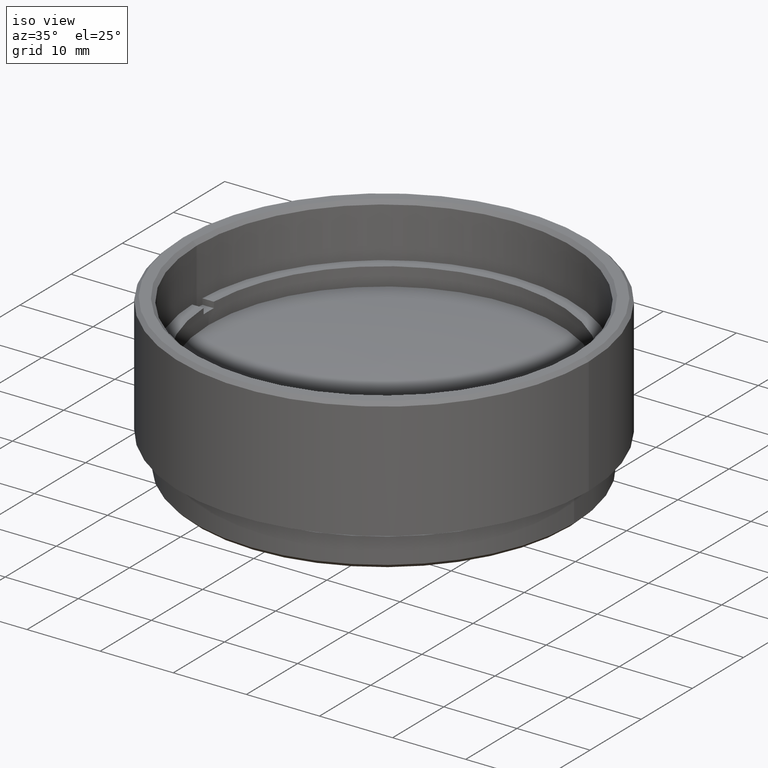
[diagram: clean part render]
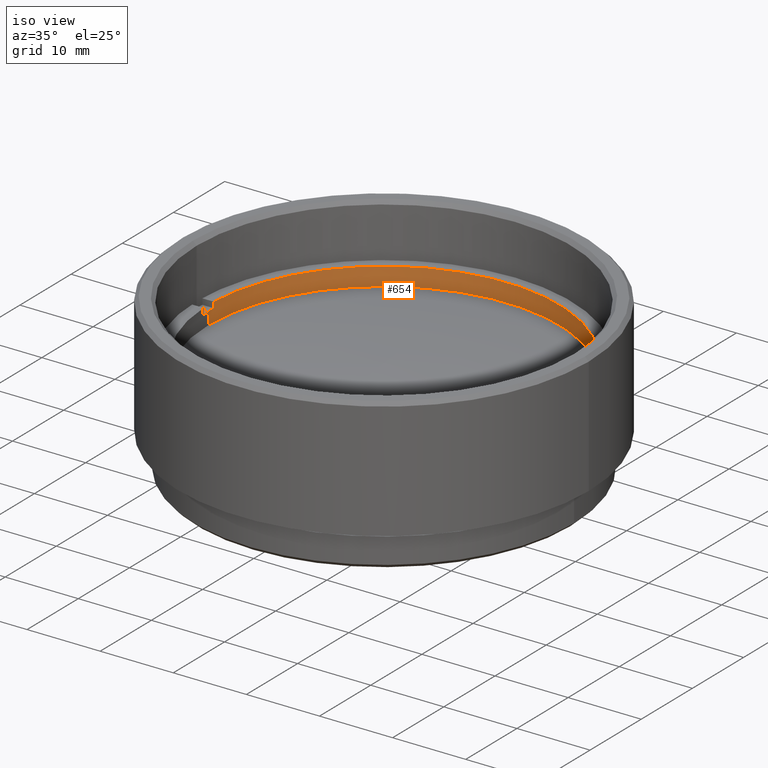
[diagram: same view with one face highlighted and labeled with its STEP entity id]
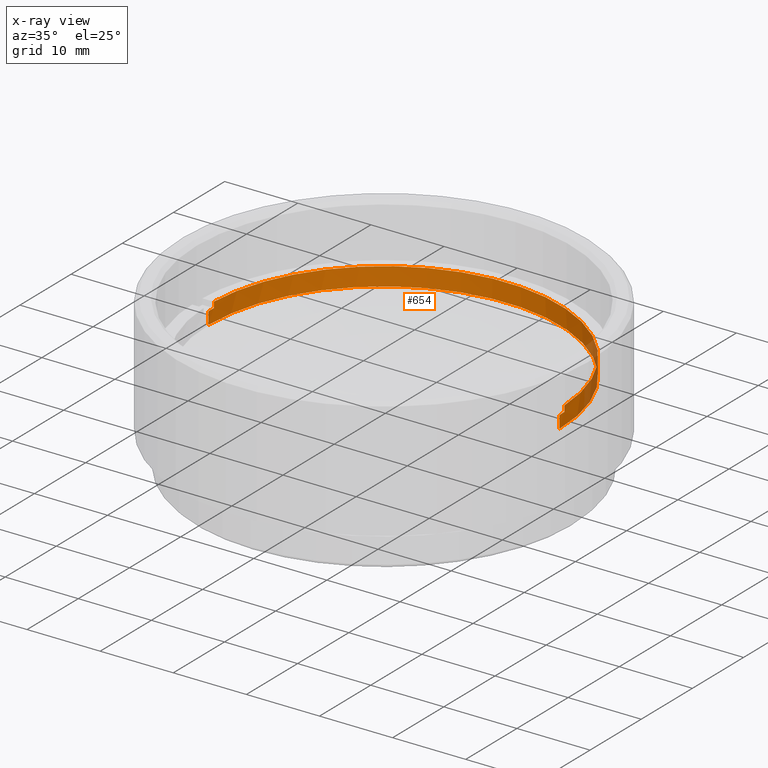
[diagram: x-ray of the same camera — body ghosted, the highlighted face saturated]
A machine part, iso view. The second image highlights one B-rep face of the part: STEP entity #654.
The next image is the same camera in x-ray: the body ghosted, the highlighted face saturated — about 5% of this face is hidden behind the body in this view.
In plain terms, the highlighted cylindrical surface (partial cylindrical patch) has radius 24 mm, axis along (-0, -0, -1).
Its self-contained STEP definition (entity closure, byte-faithful):
#6 = DIRECTION ( 'NONE',  ( -0.000000000000000000, -0.000000000000000000, -1.000000000000000000 ) ) ;
#20 = ORIENTED_EDGE ( 'NONE', *, *, #927, .T. ) ;
#24 = DIRECTION ( 'NONE',  ( 0.000000000000000000, 0.000000000000000000, 1.000000000000000000 ) ) ;
#72 = VECTOR ( 'NONE', #6, 1000.000000000000000 ) ;
#118 = VECTOR ( 'NONE', #871, 1000.000000000000000 ) ;
#127 = CARTESIAN_POINT ( 'NONE',  ( 0.000000000000000000, 0.000000000000000000, 2.500000000000000000 ) ) ;
#160 = CARTESIAN_POINT ( 'NONE',  ( 23.97915761656360445, 1.000000000000000000, 2.500000000000000000 ) ) ;
#178 = DIRECTION ( 'NONE',  ( 1.000000000000000000, 0.000000000000000000, 0.000000000000000000 ) ) ;
#179 = CARTESIAN_POINT ( 'NONE',  ( 0.000000000000000000, 0.000000000000000000, 1.700000000000000178 ) ) ;
#180 = CIRCLE ( 'NONE', #852, 24.00000000000000355 ) ;
#223 = CARTESIAN_POINT ( 'NONE',  ( -24.00000000000000355, 0.000000000000000000, 0.000000000000000000 ) ) ;
#229 = CIRCLE ( 'NONE', #257, 24.00000000000000355 ) ;
#252 = CARTESIAN_POINT ( 'NONE',  ( 0.000000000000000000, 0.000000000000000000, 2.500000000000000000 ) ) ;
#257 = AXIS2_PLACEMENT_3D ( 'NONE', #179, #595, #1692 ) ;
#259 = EDGE_CURVE ( 'NONE', #686, #596, #180, .T. ) ;
#277 = DIRECTION ( 'NONE',  ( -0.000000000000000000, 0.000000000000000000, 1.000000000000000000 ) ) ;
#286 = VERTEX_POINT ( 'NONE', #1109 ) ;
#287 = LINE ( 'NONE', #824, #1559 ) ;
#312 = DIRECTION ( 'NONE',  ( 0.000000000000000000, 0.000000000000000000, 1.000000000000000000 ) ) ;
#365 = EDGE_CURVE ( 'NONE', #596, #1054, #1380, .T. ) ;
#433 = VERTEX_POINT ( 'NONE', #1427 ) ;
#527 = CARTESIAN_POINT ( 'NONE',  ( -23.97915761656360445, 1.000000000000000000, 2.500000000000000000 ) ) ;
#595 = DIRECTION ( 'NONE',  ( -0.000000000000000000, 0.000000000000000000, 1.000000000000000000 ) ) ;
#596 = VERTEX_POINT ( 'NONE', #1441 ) ;
#617 = AXIS2_PLACEMENT_3D ( 'NONE', #860, #312, #851 ) ;
#650 = ORIENTED_EDGE ( 'NONE', *, *, #892, .T. ) ;
#654 = ADVANCED_FACE ( 'NONE', ( #1468 ), #1712, .F. ) ;
#686 = VERTEX_POINT ( 'NONE', #1027 ) ;
#765 = LINE ( 'NONE', #1024, #1447 ) ;
#783 = DIRECTION ( 'NONE',  ( -0.000000000000000000, -0.000000000000000000, -1.000000000000000000 ) ) ;
#813 = CIRCLE ( 'NONE', #1123, 24.00000000000000355 ) ;
#824 = CARTESIAN_POINT ( 'NONE',  ( 23.97915761656360445, 1.000000000000000000, 2.500000000000000000 ) ) ;
#851 = DIRECTION ( 'NONE',  ( 1.000000000000000000, 0.000000000000000000, 0.000000000000000000 ) ) ;
#852 = AXIS2_PLACEMENT_3D ( 'NONE', #1097, #277, #178 ) ;
#860 = CARTESIAN_POINT ( 'NONE',  ( 0.000000000000000000, 0.000000000000000000, 0.000000000000000000 ) ) ;
#871 = DIRECTION ( 'NONE',  ( -0.000000000000000000, -0.000000000000000000, -1.000000000000000000 ) ) ;
#889 = CARTESIAN_POINT ( 'NONE',  ( 24.00000000000000355, 2.939152317953648289E-15, 0.000000000000000000 ) ) ;
#892 = EDGE_CURVE ( 'NONE', #1597, #1504, #813, .T. ) ;
#927 = EDGE_CURVE ( 'NONE', #433, #286, #229, .T. ) ;
#987 = EDGE_LOOP ( 'NONE', ( #1560, #20, #1546, #650, #1199, #1729, #1114, #1488 ) ) ;
#1024 = CARTESIAN_POINT ( 'NONE',  ( -23.97915761656360445, 1.000000000000000000, 2.500000000000000000 ) ) ;
#1027 = CARTESIAN_POINT ( 'NONE',  ( -23.97915761656360445, 1.000000000000000000, 1.700000000000000178 ) ) ;
#1054 = VERTEX_POINT ( 'NONE', #223 ) ;
#1097 = CARTESIAN_POINT ( 'NONE',  ( 0.000000000000000000, 0.000000000000000000, 1.700000000000000178 ) ) ;
#1109 = CARTESIAN_POINT ( 'NONE',  ( 23.97915761656360445, 1.000000000000000000, 1.700000000000000178 ) ) ;
#1114 = ORIENTED_EDGE ( 'NONE', *, *, #365, .T. ) ;
#1123 = AXIS2_PLACEMENT_3D ( 'NONE', #127, #24, #1620 ) ;
#1185 = DIRECTION ( 'NONE',  ( -1.000000000000000000, 0.000000000000000000, 0.000000000000000000 ) ) ;
#1199 = ORIENTED_EDGE ( 'NONE', *, *, #1707, .F. ) ;
#1222 = EDGE_CURVE ( 'NONE', #1375, #1054, #1388, .T. ) ;
#1263 = EDGE_CURVE ( 'NONE', #433, #1375, #1649, .T. ) ;
#1298 = DIRECTION ( 'NONE',  ( -0.000000000000000000, -0.000000000000000000, -1.000000000000000000 ) ) ;
#1300 = CARTESIAN_POINT ( 'NONE',  ( 24.00000000000000355, 2.939152317953648289E-15, 2.500000000000000000 ) ) ;
#1375 = VERTEX_POINT ( 'NONE', #889 ) ;
#1380 = LINE ( 'NONE', #1507, #72 ) ;
#1388 = CIRCLE ( 'NONE', #617, 24.00000000000000355 ) ;
#1427 = CARTESIAN_POINT ( 'NONE',  ( 24.00000000000000355, 2.939152317953648289E-15, 1.700000000000000178 ) ) ;
#1428 = AXIS2_PLACEMENT_3D ( 'NONE', #252, #1298, #1185 ) ;
#1441 = CARTESIAN_POINT ( 'NONE',  ( -24.00000000000000355, 0.000000000000000000, 1.700000000000000178 ) ) ;
#1447 = VECTOR ( 'NONE', #1463, 1000.000000000000000 ) ;
#1463 = DIRECTION ( 'NONE',  ( 0.000000000000000000, 0.000000000000000000, 1.000000000000000000 ) ) ;
#1468 = FACE_OUTER_BOUND ( 'NONE', #987, .T. ) ;
#1488 = ORIENTED_EDGE ( 'NONE', *, *, #1222, .F. ) ;
#1504 = VERTEX_POINT ( 'NONE', #527 ) ;
#1507 = CARTESIAN_POINT ( 'NONE',  ( -24.00000000000000355, 0.000000000000000000, 2.500000000000000000 ) ) ;
#1546 = ORIENTED_EDGE ( 'NONE', *, *, #1684, .F. ) ;
#1559 = VECTOR ( 'NONE', #783, 1000.000000000000000 ) ;
#1560 = ORIENTED_EDGE ( 'NONE', *, *, #1263, .F. ) ;
#1597 = VERTEX_POINT ( 'NONE', #160 ) ;
#1620 = DIRECTION ( 'NONE',  ( 1.000000000000000000, 0.000000000000000000, 0.000000000000000000 ) ) ;
#1649 = LINE ( 'NONE', #1300, #118 ) ;
#1684 = EDGE_CURVE ( 'NONE', #1597, #286, #287, .T. ) ;
#1692 = DIRECTION ( 'NONE',  ( 1.000000000000000000, 0.000000000000000000, 0.000000000000000000 ) ) ;
#1707 = EDGE_CURVE ( 'NONE', #686, #1504, #765, .T. ) ;
#1712 = CYLINDRICAL_SURFACE ( 'NONE', #1428, 24.00000000000000355 ) ;
#1729 = ORIENTED_EDGE ( 'NONE', *, *, #259, .T. ) ;